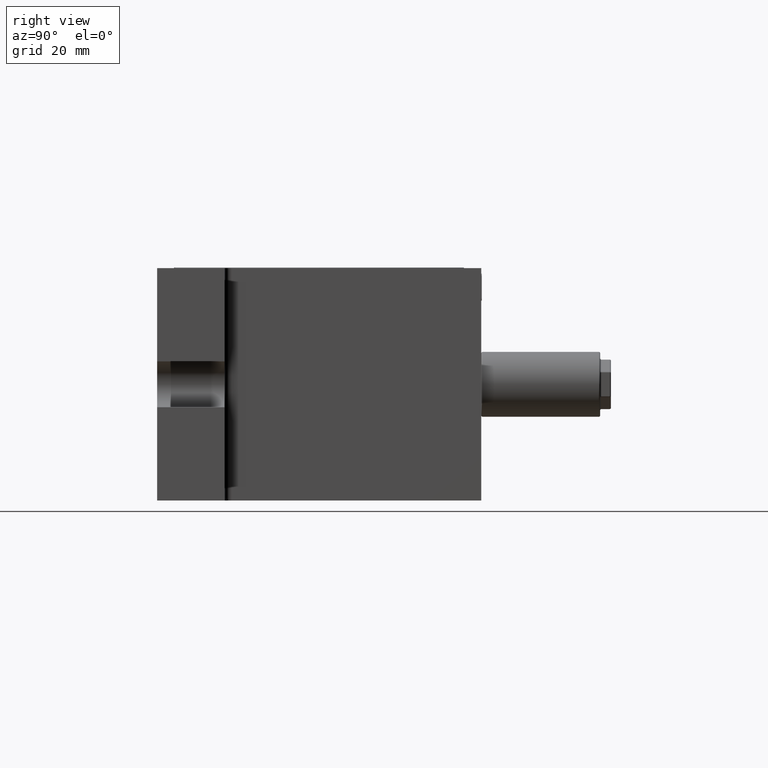
[diagram: clean part render]
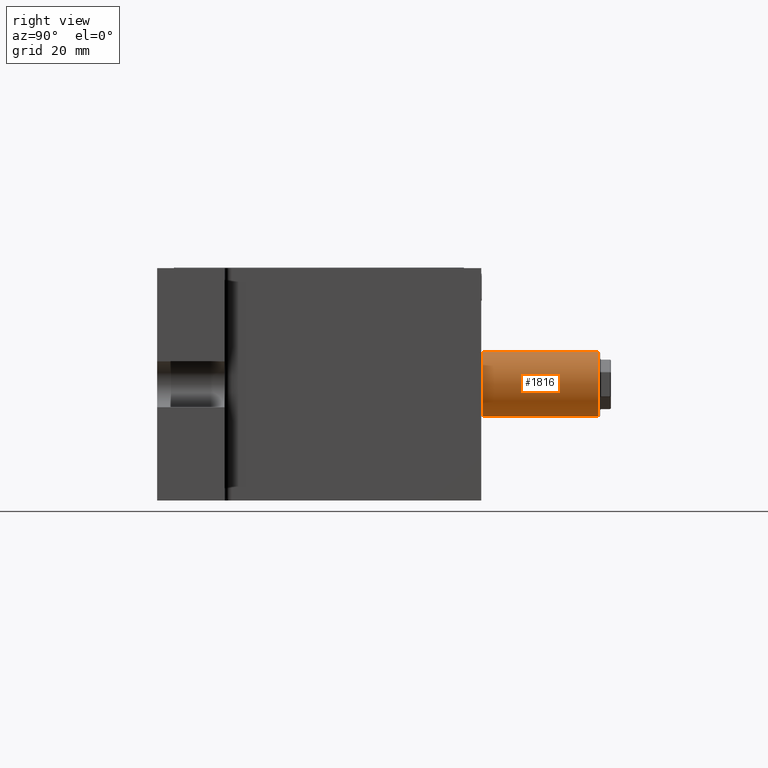
[diagram: same view with one face highlighted and labeled with its STEP entity id]
A machine part, right view. The second image highlights one B-rep face of the part: STEP entity #1816.
In plain terms, the highlighted cylindrical surface (edge-blend (fillet) strip) has radius 12 mm, axis along (0, -1, 0).
Its self-contained STEP definition (entity closure, byte-faithful):
#59 = EDGE_CURVE ( 'NONE', #2944, #10993, #1687, .T. ) ;
#100 = LINE ( 'NONE', #17098, #14806 ) ;
#362 = DIRECTION ( 'NONE',  ( 0.0000000000000000000, -1.000000000000000000, 0.0000000000000000000 ) ) ;
#684 = EDGE_CURVE ( 'NONE', #5585, #11914, #5114, .T. ) ;
#761 = CARTESIAN_POINT ( 'NONE',  ( 40.00000000000000000, 103.5000000000000000, -12.00000000000000000 ) ) ;
#1033 = LINE ( 'NONE', #5572, #1294 ) ;
#1098 = VERTEX_POINT ( 'NONE', #9174 ) ;
#1148 = VERTEX_POINT ( 'NONE', #11123 ) ;
#1294 = VECTOR ( 'NONE', #5650, 1000.000000000000000 ) ;
#1379 = VERTEX_POINT ( 'NONE', #6835 ) ;
#1687 = LINE ( 'NONE', #17852, #16370 ) ;
#1793 = CARTESIAN_POINT ( 'NONE',  ( 40.00000000000000000, 104.0000000000000000, 12.00000000000000000 ) ) ;
#1816 = ADVANCED_FACE ( 'NONE', ( #6149 ), #8520, .T. ) ;
#1952 = CARTESIAN_POINT ( 'NONE',  ( 40.00000000000000000, 104.0000000000000000, -12.00000000000000000 ) ) ;
#2013 = VERTEX_POINT ( 'NONE', #5761 ) ;
#2195 = VECTOR ( 'NONE', #13544, 1000.000000000000000 ) ;
#2254 = VECTOR ( 'NONE', #8044, 1000.000000000000000 ) ;
#2276 = EDGE_CURVE ( 'NONE', #11914, #12727, #20327, .T. ) ;
#2669 = DIRECTION ( 'NONE',  ( 0.0000000000000000000, -1.000000000000000000, 0.0000000000000000000 ) ) ;
#2740 = LINE ( 'NONE', #15277, #2195 ) ;
#2802 = LINE ( 'NONE', #16553, #18046 ) ;
#2944 = VERTEX_POINT ( 'NONE', #12645 ) ;
#3252 = ORIENTED_EDGE ( 'NONE', *, *, #4174, .F. ) ;
#3255 = CARTESIAN_POINT ( 'NONE',  ( 40.00000000000000000, 104.0000000000000000, 12.00000000000000000 ) ) ;
#3261 = VERTEX_POINT ( 'NONE', #11785 ) ;
#3279 = CARTESIAN_POINT ( 'NONE',  ( 40.00000000000000000, 78.00000000000000000, -12.00000000000000000 ) ) ;
#3415 = ORIENTED_EDGE ( 'NONE', *, *, #15595, .F. ) ;
#3462 = ORIENTED_EDGE ( 'NONE', *, *, #9821, .F. ) ;
#3863 = LINE ( 'NONE', #7868, #21522 ) ;
#4029 = LINE ( 'NONE', #20126, #12327 ) ;
#4106 = CIRCLE ( 'NONE', #11038, 12.00000000000000000 ) ;
#4119 = ORIENTED_EDGE ( 'NONE', *, *, #17474, .T. ) ;
#4174 = EDGE_CURVE ( 'NONE', #16577, #8450, #17486, .T. ) ;
#4272 = ORIENTED_EDGE ( 'NONE', *, *, #20402, .F. ) ;
#4392 = CARTESIAN_POINT ( 'NONE',  ( 40.00000000000000000, 104.0000000000000000, 12.00000000000000000 ) ) ;
#4636 = EDGE_CURVE ( 'NONE', #12810, #20595, #4106, .T. ) ;
#4930 = CARTESIAN_POINT ( 'NONE',  ( 40.00000000000000000, 104.0000000000000000, 12.00000000000000000 ) ) ;
#5002 = DIRECTION ( 'NONE',  ( 0.0000000000000000000, -1.000000000000000000, 0.0000000000000000000 ) ) ;
#5114 = LINE ( 'NONE', #4392, #13925 ) ;
#5200 = VECTOR ( 'NONE', #13869, 1000.000000000000000 ) ;
#5208 = DIRECTION ( 'NONE',  ( -0.0000000000000000000, 1.000000000000000000, -0.0000000000000000000 ) ) ;
#5545 = DIRECTION ( 'NONE',  ( 0.0000000000000000000, -1.000000000000000000, 0.0000000000000000000 ) ) ;
#5572 = CARTESIAN_POINT ( 'NONE',  ( 40.00000000000000000, 104.0000000000000000, 12.00000000000000000 ) ) ;
#5585 = VERTEX_POINT ( 'NONE', #16280 ) ;
#5650 = DIRECTION ( 'NONE',  ( 0.0000000000000000000, -1.000000000000000000, 0.0000000000000000000 ) ) ;
#5730 = CARTESIAN_POINT ( 'NONE',  ( 40.00000000000000000, 70.00000000000000000, -12.00000000000000000 ) ) ;
#5761 = CARTESIAN_POINT ( 'NONE',  ( 40.00000000000000000, 94.00000000000000000, -12.00000000000000000 ) ) ;
#6125 = VECTOR ( 'NONE', #8620, 1000.000000000000000 ) ;
#6149 = FACE_OUTER_BOUND ( 'NONE', #7362, .T. ) ;
#6347 = DIRECTION ( 'NONE',  ( 0.0000000000000000000, -1.000000000000000000, 0.0000000000000000000 ) ) ;
#6357 = VECTOR ( 'NONE', #362, 1000.000000000000000 ) ;
#6597 = VECTOR ( 'NONE', #5208, 1000.000000000000000 ) ;
#6630 = ORIENTED_EDGE ( 'NONE', *, *, #15508, .F. ) ;
#6835 = CARTESIAN_POINT ( 'NONE',  ( 40.00000000000000000, 92.00000000000000000, -12.00000000000000000 ) ) ;
#7051 = AXIS2_PLACEMENT_3D ( 'NONE', #15524, #10386, #11837 ) ;
#7128 = LINE ( 'NONE', #7446, #6357 ) ;
#7304 = DIRECTION ( 'NONE',  ( 0.0000000000000000000, 1.000000000000000000, 0.0000000000000000000 ) ) ;
#7362 = EDGE_LOOP ( 'NONE', ( #14393, #4119, #16252, #3415, #9567, #7864, #16306, #3462, #17718, #19261, #13250, #21104, #6630, #8692, #9600, #4272, #20954, #3252, #8182, #20681 ) ) ;
#7446 = CARTESIAN_POINT ( 'NONE',  ( 40.00000000000000000, 104.0000000000000000, -12.00000000000000000 ) ) ;
#7864 = ORIENTED_EDGE ( 'NONE', *, *, #14445, .F. ) ;
#7868 = CARTESIAN_POINT ( 'NONE',  ( 40.00000000000000000, 104.0000000000000000, -12.00000000000000000 ) ) ;
#8044 = DIRECTION ( 'NONE',  ( -0.0000000000000000000, 1.000000000000000000, -0.0000000000000000000 ) ) ;
#8182 = ORIENTED_EDGE ( 'NONE', *, *, #14214, .F. ) ;
#8330 = EDGE_CURVE ( 'NONE', #1148, #10595, #3863, .T. ) ;
#8450 = VERTEX_POINT ( 'NONE', #18829 ) ;
#8520 = CYLINDRICAL_SURFACE ( 'NONE', #7051, 12.00000000000000000 ) ;
#8620 = DIRECTION ( 'NONE',  ( 0.0000000000000000000, -1.000000000000000000, 0.0000000000000000000 ) ) ;
#8692 = ORIENTED_EDGE ( 'NONE', *, *, #17056, .T. ) ;
#9087 = VECTOR ( 'NONE', #21798, 1000.000000000000000 ) ;
#9174 = CARTESIAN_POINT ( 'NONE',  ( 40.00000000000000000, 78.00000000000000000, 12.00000000000000000 ) ) ;
#9276 = VERTEX_POINT ( 'NONE', #3279 ) ;
#9567 = ORIENTED_EDGE ( 'NONE', *, *, #20821, .T. ) ;
#9600 = ORIENTED_EDGE ( 'NONE', *, *, #8330, .F. ) ;
#9821 = EDGE_CURVE ( 'NONE', #5585, #1098, #4029, .T. ) ;
#10386 = DIRECTION ( 'NONE',  ( 0.0000000000000000000, -1.000000000000000000, 0.0000000000000000000 ) ) ;
#10595 = VERTEX_POINT ( 'NONE', #5730 ) ;
#10993 = VERTEX_POINT ( 'NONE', #19558 ) ;
#11038 = AXIS2_PLACEMENT_3D ( 'NONE', #19108, #7304, #12147 ) ;
#11123 = CARTESIAN_POINT ( 'NONE',  ( 40.00000000000000000, 76.00000000000000000, -12.00000000000000000 ) ) ;
#11524 = CARTESIAN_POINT ( 'NONE',  ( 40.00000000000000000, 103.5000000000000000, 0.0000000000000000000 ) ) ;
#11543 = DIRECTION ( 'NONE',  ( -0.0000000000000000000, 1.000000000000000000, -0.0000000000000000000 ) ) ;
#11568 = EDGE_CURVE ( 'NONE', #8450, #9276, #14725, .T. ) ;
#11589 = CARTESIAN_POINT ( 'NONE',  ( 40.00000000000000000, 104.0000000000000000, -12.00000000000000000 ) ) ;
#11785 = CARTESIAN_POINT ( 'NONE',  ( 40.00000000000000000, 86.00000000000000000, 12.00000000000000000 ) ) ;
#11837 = DIRECTION ( 'NONE',  ( 0.0000000000000000000, 0.0000000000000000000, 1.000000000000000000 ) ) ;
#11914 = VERTEX_POINT ( 'NONE', #15738 ) ;
#12147 = DIRECTION ( 'NONE',  ( 0.0000000000000000000, 0.0000000000000000000, -1.000000000000000000 ) ) ;
#12327 = VECTOR ( 'NONE', #11543, 1000.000000000000000 ) ;
#12394 = LINE ( 'NONE', #13948, #5200 ) ;
#12645 = CARTESIAN_POINT ( 'NONE',  ( 40.00000000000000000, 103.5000000000000000, 12.00000000000000000 ) ) ;
#12727 = VERTEX_POINT ( 'NONE', #15580 ) ;
#12810 = VERTEX_POINT ( 'NONE', #13858 ) ;
#12911 = DIRECTION ( 'NONE',  ( 0.0000000000000000000, -1.000000000000000000, 0.0000000000000000000 ) ) ;
#12979 = CARTESIAN_POINT ( 'NONE',  ( 40.00000000000000000, 104.0000000000000000, -12.00000000000000000 ) ) ;
#13250 = ORIENTED_EDGE ( 'NONE', *, *, #19956, .T. ) ;
#13336 = CARTESIAN_POINT ( 'NONE',  ( 40.00000000000000000, 84.00000000000000000, 12.00000000000000000 ) ) ;
#13544 = DIRECTION ( 'NONE',  ( -0.0000000000000000000, 1.000000000000000000, -0.0000000000000000000 ) ) ;
#13858 = CARTESIAN_POINT ( 'NONE',  ( 40.00000000000000000, 60.50000000000000000, 12.00000000000000000 ) ) ;
#13869 = DIRECTION ( 'NONE',  ( 0.0000000000000000000, -1.000000000000000000, 0.0000000000000000000 ) ) ;
#13925 = VECTOR ( 'NONE', #16620, 1000.000000000000000 ) ;
#13948 = CARTESIAN_POINT ( 'NONE',  ( 40.00000000000000000, 104.0000000000000000, -12.00000000000000000 ) ) ;
#14062 = LINE ( 'NONE', #12979, #21335 ) ;
#14069 = VECTOR ( 'NONE', #5545, 1000.000000000000000 ) ;
#14094 = CARTESIAN_POINT ( 'NONE',  ( 40.00000000000000000, 68.00000000000000000, -12.00000000000000000 ) ) ;
#14166 = LINE ( 'NONE', #4930, #14716 ) ;
#14214 = EDGE_CURVE ( 'NONE', #1379, #16577, #14062, .T. ) ;
#14267 = VERTEX_POINT ( 'NONE', #13336 ) ;
#14271 = LINE ( 'NONE', #3255, #2254 ) ;
#14393 = ORIENTED_EDGE ( 'NONE', *, *, #19601, .F. ) ;
#14445 = EDGE_CURVE ( 'NONE', #14267, #3261, #20271, .T. ) ;
#14716 = VECTOR ( 'NONE', #5002, 1000.000000000000000 ) ;
#14725 = LINE ( 'NONE', #11589, #9087 ) ;
#14806 = VECTOR ( 'NONE', #19079, 1000.000000000000000 ) ;
#15182 = EDGE_CURVE ( 'NONE', #2013, #1379, #12394, .T. ) ;
#15277 = CARTESIAN_POINT ( 'NONE',  ( 40.00000000000000000, 104.0000000000000000, -12.00000000000000000 ) ) ;
#15508 = EDGE_CURVE ( 'NONE', #20887, #20595, #2802, .T. ) ;
#15524 = CARTESIAN_POINT ( 'NONE',  ( 40.00000000000000000, 104.0000000000000000, 0.0000000000000000000 ) ) ;
#15580 = CARTESIAN_POINT ( 'NONE',  ( 40.00000000000000000, 68.00000000000000000, 12.00000000000000000 ) ) ;
#15595 = EDGE_CURVE ( 'NONE', #19142, #10993, #14271, .T. ) ;
#15608 = CARTESIAN_POINT ( 'NONE',  ( 40.00000000000000000, 104.0000000000000000, -12.00000000000000000 ) ) ;
#15738 = CARTESIAN_POINT ( 'NONE',  ( 40.00000000000000000, 70.00000000000000000, 12.00000000000000000 ) ) ;
#15966 = DIRECTION ( 'NONE',  ( 0.0000000000000000000, -1.000000000000000000, 0.0000000000000000000 ) ) ;
#16252 = ORIENTED_EDGE ( 'NONE', *, *, #59, .T. ) ;
#16280 = CARTESIAN_POINT ( 'NONE',  ( 40.00000000000000000, 76.00000000000000000, 12.00000000000000000 ) ) ;
#16306 = ORIENTED_EDGE ( 'NONE', *, *, #18202, .T. ) ;
#16370 = VECTOR ( 'NONE', #15966, 1000.000000000000000 ) ;
#16553 = CARTESIAN_POINT ( 'NONE',  ( 40.00000000000000000, 104.0000000000000000, -12.00000000000000000 ) ) ;
#16577 = VERTEX_POINT ( 'NONE', #20878 ) ;
#16620 = DIRECTION ( 'NONE',  ( 0.0000000000000000000, -1.000000000000000000, 0.0000000000000000000 ) ) ;
#16636 = VERTEX_POINT ( 'NONE', #761 ) ;
#16899 = CARTESIAN_POINT ( 'NONE',  ( 40.00000000000000000, 92.00000000000000000, 12.00000000000000000 ) ) ;
#16934 = VECTOR ( 'NONE', #18722, 1000.000000000000000 ) ;
#17056 = EDGE_CURVE ( 'NONE', #20887, #10595, #2740, .T. ) ;
#17098 = CARTESIAN_POINT ( 'NONE',  ( 40.00000000000000000, 104.0000000000000000, 12.00000000000000000 ) ) ;
#17296 = LINE ( 'NONE', #15608, #14069 ) ;
#17474 = EDGE_CURVE ( 'NONE', #16636, #2944, #20136, .T. ) ;
#17486 = LINE ( 'NONE', #1952, #16934 ) ;
#17718 = ORIENTED_EDGE ( 'NONE', *, *, #684, .T. ) ;
#17852 = CARTESIAN_POINT ( 'NONE',  ( 40.00000000000000000, 104.0000000000000000, 12.00000000000000000 ) ) ;
#18046 = VECTOR ( 'NONE', #6347, 1000.000000000000000 ) ;
#18202 = EDGE_CURVE ( 'NONE', #14267, #1098, #14166, .T. ) ;
#18328 = CARTESIAN_POINT ( 'NONE',  ( 40.00000000000000000, 60.50000000000000000, -12.00000000000000000 ) ) ;
#18591 = DIRECTION ( 'NONE',  ( 0.0000000000000000000, 0.0000000000000000000, -1.000000000000000000 ) ) ;
#18722 = DIRECTION ( 'NONE',  ( 0.0000000000000000000, -1.000000000000000000, 0.0000000000000000000 ) ) ;
#18829 = CARTESIAN_POINT ( 'NONE',  ( 40.00000000000000000, 84.00000000000000000, -12.00000000000000000 ) ) ;
#19079 = DIRECTION ( 'NONE',  ( 0.0000000000000000000, -1.000000000000000000, 0.0000000000000000000 ) ) ;
#19108 = CARTESIAN_POINT ( 'NONE',  ( 40.00000000000000000, 60.50000000000000000, 0.0000000000000000000 ) ) ;
#19142 = VERTEX_POINT ( 'NONE', #16899 ) ;
#19261 = ORIENTED_EDGE ( 'NONE', *, *, #2276, .T. ) ;
#19385 = CARTESIAN_POINT ( 'NONE',  ( 40.00000000000000000, 104.0000000000000000, 12.00000000000000000 ) ) ;
#19558 = CARTESIAN_POINT ( 'NONE',  ( 40.00000000000000000, 94.00000000000000000, 12.00000000000000000 ) ) ;
#19601 = EDGE_CURVE ( 'NONE', #16636, #2013, #7128, .T. ) ;
#19956 = EDGE_CURVE ( 'NONE', #12727, #12810, #1033, .T. ) ;
#20126 = CARTESIAN_POINT ( 'NONE',  ( 40.00000000000000000, 104.0000000000000000, 12.00000000000000000 ) ) ;
#20136 = CIRCLE ( 'NONE', #20565, 12.00000000000000000 ) ;
#20271 = LINE ( 'NONE', #19385, #6597 ) ;
#20327 = LINE ( 'NONE', #1793, #6125 ) ;
#20402 = EDGE_CURVE ( 'NONE', #9276, #1148, #17296, .T. ) ;
#20565 = AXIS2_PLACEMENT_3D ( 'NONE', #11524, #21721, #18591 ) ;
#20595 = VERTEX_POINT ( 'NONE', #18328 ) ;
#20681 = ORIENTED_EDGE ( 'NONE', *, *, #15182, .F. ) ;
#20821 = EDGE_CURVE ( 'NONE', #19142, #3261, #100, .T. ) ;
#20878 = CARTESIAN_POINT ( 'NONE',  ( 40.00000000000000000, 86.00000000000000000, -12.00000000000000000 ) ) ;
#20887 = VERTEX_POINT ( 'NONE', #14094 ) ;
#20954 = ORIENTED_EDGE ( 'NONE', *, *, #11568, .F. ) ;
#21104 = ORIENTED_EDGE ( 'NONE', *, *, #4636, .T. ) ;
#21335 = VECTOR ( 'NONE', #12911, 1000.000000000000000 ) ;
#21522 = VECTOR ( 'NONE', #2669, 1000.000000000000000 ) ;
#21721 = DIRECTION ( 'NONE',  ( -0.0000000000000000000, -1.000000000000000000, -0.0000000000000000000 ) ) ;
#21798 = DIRECTION ( 'NONE',  ( 0.0000000000000000000, -1.000000000000000000, 0.0000000000000000000 ) ) ;